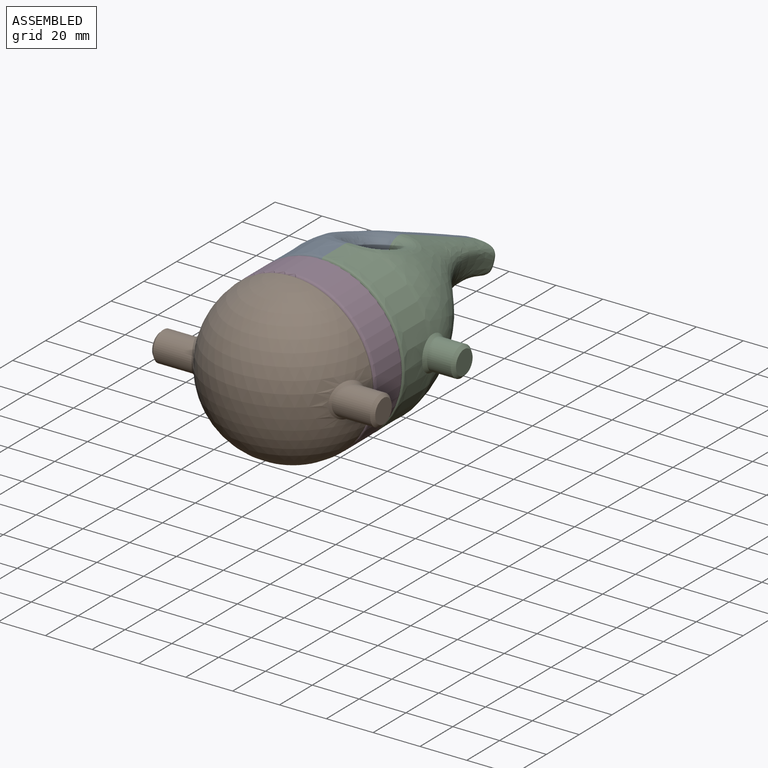
[diagram: assembled view]
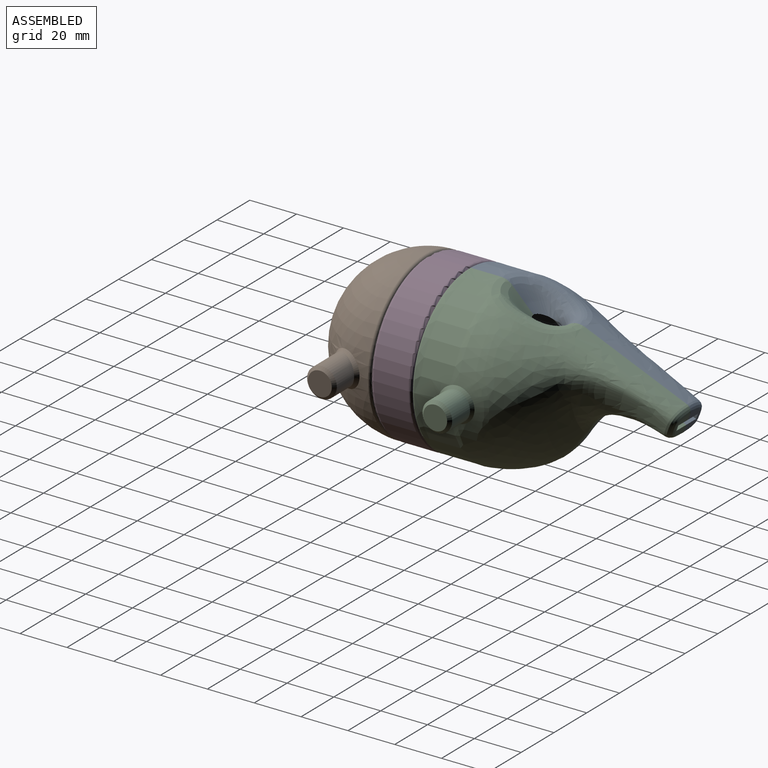
[diagram: assembled view, second angle]
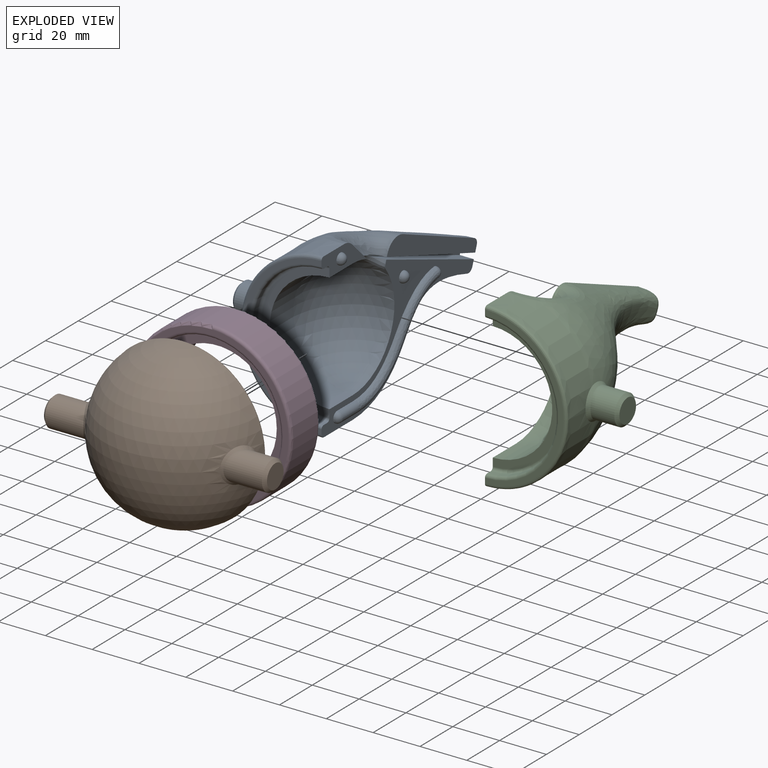
[diagram: exploded view]
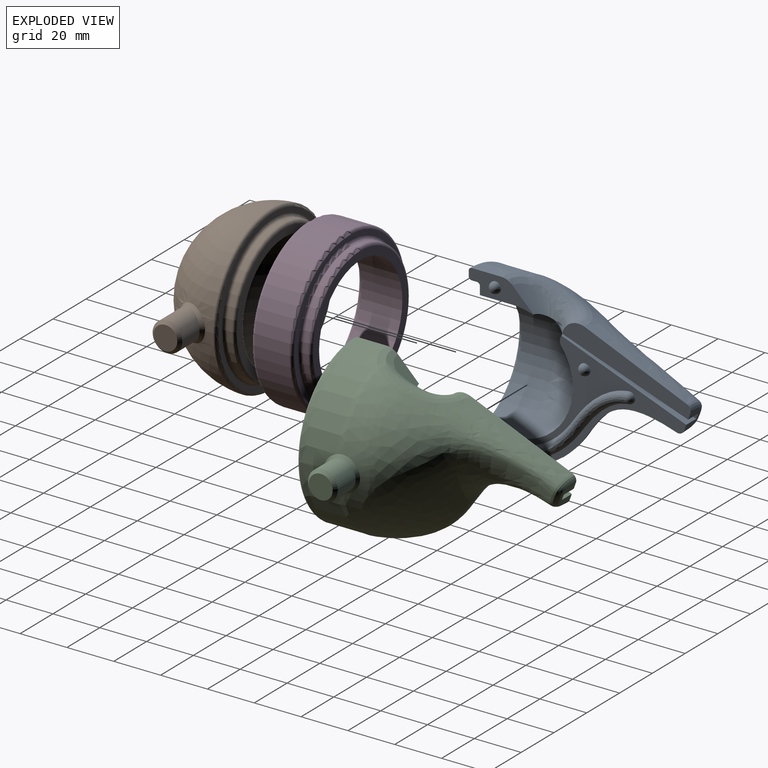
[diagram: exploded view, second angle]
ASSEMBLY  parts=4 mates=4
PART A: 39 faces, bbox 51.1x96.6x71 mm
  f0: cylinder r=25.4mm len=50.8mm, axis (0,1,0), area 1140.1mm2, adj f2,f3,f7,f21
  f1: plane 55.24x24.79mm, normal (1,0,0), area 376.6mm2, adj f4,f5,f6,f12,f15,f16,f18
  f2: plane 27.71x11.03mm, normal (1,0,0), area 165.5mm2, adj f0,f7,f8,f10,f12,f17,f19,f20
  f3: plane 94.02x55.12mm, normal (1,0,0), area 827.1mm2, adj f0,f4,f5,f6,f7,f9,f10,f11
  f4: bspline ~46.14x41.59mm, area 1368.8mm2, adj f1,f3,f5,f16
  f5: bspline ~69.85x43.05mm, area 3077.2mm2, adj f1,f3,f4,f8,f9,f17,f18,f27
  f6: plane 7.29x7.02mm, normal (0,0.94,-0.34), area 34mm2, adj f1,f3,f13,f14,f15,f16
  f7: sphere r=25.4mm, area 1952.2mm2, adj f0,f2,f3,f19
  f8: extruded ~34.93x34.93mm, area 912.2mm2, adj f2,f5,f9,f17,f25,f28
  f9: extruded ~34.93x34.93mm, area 947.2mm2, adj f3,f5,f8,f26,f29
  f10: plane 67.31x33.68mm, normal (0,-1,0), area 227.3mm2, adj f2,f3,f28,f29,f30
  f11: bspline ~14.49x5.96mm, area 10.3mm2, adj f3,f12,f13,f14,f19
  f12: bspline ~22.74x13.32mm, area 118.3mm2, adj f1,f2,f11,f14,f15,f17,f18,f19
  f13: plane 58.83x22.86mm, normal (0,0.35,0.94), area 309.8mm2, adj f3,f6,f11,f14
  f14: plane 60.3x23.1mm, normal (1,0.02,-0.01), area 99.9mm2, adj f6,f11,f12,f13,f15
  f15: plane 59.37x21.41mm, normal (0,-0.33,-0.94), area 309.8mm2, adj f1,f6,f12,f14
  f16: bspline ~12.84x10.31mm, area 92.8mm2, adj f1,f3,f4,f6
  f17: bspline ~13.91x9.96mm, area 71.7mm2, adj f2,f5,f8,f12,f18
  f18: bspline ~31.39x16.39mm, area 326.4mm2, adj f1,f5,f12,f17
  f19: bspline ~12.12x8.78mm, area 36.2mm2, adj f2,f3,f7,f11,f12
  f20: cylinder r=30.16mm len=60.33mm, axis (0,-1,0), area 210.6mm2, adj f2,f3,f30,f31
  f21: plane 57.79x28.89mm, normal (0,-1,0), area 297.8mm2, adj f0,f2,f3,f31
  f22: cylinder r=6.35mm len=12.7mm, axis (1,0,0), area 429.6mm2, adj f24,f25,f26,f27
  f23: plane 10.16x10.16mm, normal (-1,0,0), area 81.1mm2, adj f24
  f24: cone r=6.35mm half-angle=45deg, axis (1,0,0), area 64.5mm2, adj f22,f23
  f25: bspline ~7.62x7.35mm, area 18.5mm2, adj f8,f22,f26,f27
  f26: bspline ~7.62x7.35mm, area 18.5mm2, adj f9,f22,f25,f27
  f27: bspline ~14.71x7.6mm, area 34.3mm2, adj f5,f22,f25,f26
  f28: bspline ~46.09x35.63mm, area 108mm2, adj f2,f8,f10,f29
  f29: bspline ~46.09x35.63mm, area 108mm2, adj f3,f9,f10,f28
  f30: torus R=31.43mm, axis (0,-1,0), area 191.9mm2, adj f2,f3,f10,f20
  f31: torus R=28.89mm, axis (0,-1,0), area 186.1mm2, adj f2,f3,f20,f21
  f32: cylinder r=2.38mm len=9.53mm, axis (0,1,0), area 71.3mm2, adj f3,f33,f35
  f33: bspline ~30.4x21.34mm, area 261.6mm2, adj f3,f32,f34
  f34: bspline ~23.42x19.19mm, area 202.9mm2, adj f3,f33,f36
  f35: sphere r=2.38mm, area 15mm2, adj f3,f32
  f36: sphere r=2.38mm, area 17.8mm2, adj f3,f34
  f37: sphere r=2.38mm, area 35.6mm2, adj f2
  f38: sphere r=2.38mm, area 35.6mm2, adj f3
PART B: 17 faces, bbox 95.3x75.6x39.7 mm
  f0: sphere r=34.92mm, area 7003.3mm2, adj f8,f11,f15
  f1: plane 67.26x67.26mm, normal (0,0,1), area 449.4mm2, adj f6,f8
  f2: sphere r=25.4mm, area 4053.7mm2, adj f4
  f3: cylinder r=30.16mm len=60.33mm, axis (0,0,-1), area 421.2mm2, adj f6,f7
  f4: cylinder r=25.4mm len=50.8mm, axis (0,0,-1), area 760.1mm2, adj f2,f5
  f5: plane 57.79x57.79mm, normal (0,0,1), area 595.7mm2, adj f4,f7
  f6: torus R=31.43mm, axis (0,0,-1), area 383.9mm2, adj f1,f3
  f7: torus R=28.89mm, axis (0,0,1), area 372.3mm2, adj f3,f5
  f8: torus R=33.63mm, axis (0,0,-1), area 442.2mm2, adj f0,f1
  f9: cylinder r=6.35mm len=16.47mm, axis (-1,0,0), area 535.2mm2, adj f11,f12
  f10: plane 10.16x10.16mm, normal (1,0,0), area 81.1mm2, adj f12
  f11: bspline ~14.7x14.69mm, area 70.7mm2, adj f0,f9
  f12: cone r=5.08mm half-angle=45deg, axis (-1,0,0), area 64.5mm2, adj f9,f10
  f13: cylinder r=6.35mm len=16.44mm, axis (1,0,0), area 535.2mm2, adj f15,f16
  f14: plane 10.16x10.16mm, normal (-1,0,0), area 81.1mm2, adj f16
  f15: bspline ~14.7x14.69mm, area 70.7mm2, adj f0,f13
  f16: cone r=5.08mm half-angle=45deg, axis (1,0,0), area 64.5mm2, adj f13,f14
PART C: 39 faces, bbox 50.3x96.6x71 mm
  f0: cylinder r=25.4mm len=50.8mm, axis (0,1,0), area 1140.1mm2, adj f2,f3,f7,f21
  f1: plane 55.24x24.79mm, normal (-1,0,0), area 376.6mm2, adj f4,f5,f6,f12,f15,f16,f18
  f2: plane 27.71x11.03mm, normal (-1,0,0), area 165.5mm2, adj f0,f7,f8,f10,f12,f17,f19,f20
  f3: plane 94.02x55.12mm, normal (-1,0,0), area 826.9mm2, adj f0,f4,f5,f6,f7,f9,f10,f11
  f4: bspline ~46.14x41.59mm, area 1368.8mm2, adj f1,f3,f5,f16
  f5: bspline ~69.85x43.05mm, area 3077.1mm2, adj f1,f3,f4,f8,f9,f17,f18,f27
  f6: plane 7.29x7.02mm, normal (0,0.94,-0.34), area 34mm2, adj f1,f3,f13,f14,f15,f16
  f7: sphere r=25.4mm, area 1952.2mm2, adj f0,f2,f3,f19
  f8: extruded ~34.93x34.93mm, area 912.2mm2, adj f2,f5,f9,f17,f25,f28
  f9: extruded ~34.93x34.93mm, area 947.2mm2, adj f3,f5,f8,f26,f29
  f10: plane 67.31x33.66mm, normal (0,-1,0), area 227.3mm2, adj f2,f3,f28,f29,f30
  f11: bspline ~14.49x5.96mm, area 10.3mm2, adj f3,f12,f13,f14,f19
  f12: bspline ~22.74x13.32mm, area 118.3mm2, adj f1,f2,f11,f14,f15,f17,f18,f19
  f13: plane 58.83x22.86mm, normal (0,0.35,0.94), area 309.8mm2, adj f3,f6,f11,f14
  f14: plane 60.3x23.1mm, normal (-1,0.02,-0.01), area 99.9mm2, adj f6,f11,f12,f13,f15
  f15: plane 59.37x21.41mm, normal (0,-0.33,-0.94), area 309.8mm2, adj f1,f6,f12,f14
  f16: bspline ~12.84x10.31mm, area 92.8mm2, adj f1,f3,f4,f6
  f17: bspline ~13.91x9.96mm, area 71.6mm2, adj f2,f5,f8,f12,f18
  f18: bspline ~30.57x16.39mm, area 326.4mm2, adj f1,f5,f12,f17
  f19: bspline ~12.12x8.78mm, area 36.2mm2, adj f2,f3,f7,f11,f12
  f20: cylinder r=30.16mm len=60.33mm, axis (0,-1,0), area 210.6mm2, adj f2,f3,f30,f31
  f21: plane 57.79x28.89mm, normal (0,-1,0), area 297.8mm2, adj f0,f2,f3,f31
  f22: cylinder r=6.35mm len=12.7mm, axis (-1,0,0), area 429.6mm2, adj f24,f25,f26,f27
  f23: plane 10.16x10.16mm, normal (1,0,0), area 81.1mm2, adj f24
  f24: cone r=6.35mm half-angle=45deg, axis (-1,0,0), area 64.5mm2, adj f22,f23
  f25: bspline ~7.63x7.36mm, area 18.5mm2, adj f8,f22,f26,f27
  f26: bspline ~7.63x7.36mm, area 18.5mm2, adj f9,f22,f25,f27
  f27: bspline ~14.71x7.41mm, area 34.3mm2, adj f5,f22,f25,f26
  f28: bspline ~46.09x36.45mm, area 108mm2, adj f2,f8,f10,f29
  f29: bspline ~46.09x36.45mm, area 108mm2, adj f3,f9,f10,f28
  f30: torus R=31.43mm, axis (0,-1,0), area 191.9mm2, adj f2,f3,f10,f20
  f31: torus R=28.89mm, axis (0,-1,0), area 186.1mm2, adj f2,f3,f20,f21
  f32: sphere r=2.38mm, area 35.6mm2, adj f3
  f33: sphere r=2.38mm, area 35.6mm2, adj f2
  f34: cylinder r=2.38mm len=9.53mm, axis (0,1,0), area 71.3mm2, adj f3,f35,f37
  f35: bspline ~30.4x21.34mm, area 261.6mm2, adj f3,f34,f36
  f36: bspline ~23.42x19.19mm, area 202.9mm2, adj f3,f35,f38
  f37: sphere r=2.38mm, area 15mm2, adj f3,f34
  f38: sphere r=2.38mm, area 17.8mm2, adj f3,f36
PART D: 14 faces, bbox 75.6x75.6x22.2 mm
  f0: plane 57.79x57.79mm, normal (0,0,-1), area 595.7mm2, adj f1,f8
  f1: cylinder r=25.4mm len=50.8mm, axis (0,0,-1), area 2786.9mm2, adj f0,f5
  f2: cylinder r=34.92mm len=69.85mm, axis (0,0,-1), area 3274.6mm2, adj f10,f13
  f3: plane 67.31x67.31mm, normal (0,0,1), area 454.5mm2, adj f11,f13
  f4: cylinder r=30.16mm len=60.33mm, axis (0,0,-1), area 421.2mm2, adj f11,f12
  f5: plane 57.79x57.79mm, normal (0,0,1), area 595.7mm2, adj f1,f12
  f6: cylinder r=30.16mm len=60.33mm, axis (0,0,1), area 421.2mm2, adj f8,f9
  f7: plane 67.31x67.31mm, normal (0,0,-1), area 454.5mm2, adj f9,f10
  f8: torus R=28.89mm, axis (0,0,1), area 372.3mm2, adj f0,f6
  f9: torus R=31.43mm, axis (0,0,-1), area 383.9mm2, adj f6,f7
  f10: torus R=33.65mm, axis (0,0,-1), area 432mm2, adj f2,f7
  f11: torus R=31.43mm, axis (0,0,1), area 383.9mm2, adj f3,f4
  f12: torus R=28.89mm, axis (0,0,1), area 372.3mm2, adj f4,f5
  f13: torus R=33.65mm, axis (0,0,1), area 432mm2, adj f2,f3
PLACE A t=(9.15,-16.97,13.61)mm fixed
PLACE B rot(axis=(-1,0,0),90deg) t=(9.15,-53.48,13.61)mm
PLACE C t=(9.15,-16.97,13.61)mm
PLACE D rot(axis=(-1,0,0),90deg) t=(9.15,-48.72,13.61)mm
MATE fastened A.f1 <-> C.f1  axis (1,0,0) through (9.15,30.37,27.87)mm
MATE slider A.f0 <-> D.f1  axis (0,1,0) through (9.15,-24.11,13.61)mm
MATE fastened B.f3 <-> D.f6  axis (0,1,0) through (9.15,-48.72,13.61)mm
MATE planar A.f10 <-> D.f2  axis (0,-1,0) through (-11.58,-36.02,13.61)mm
